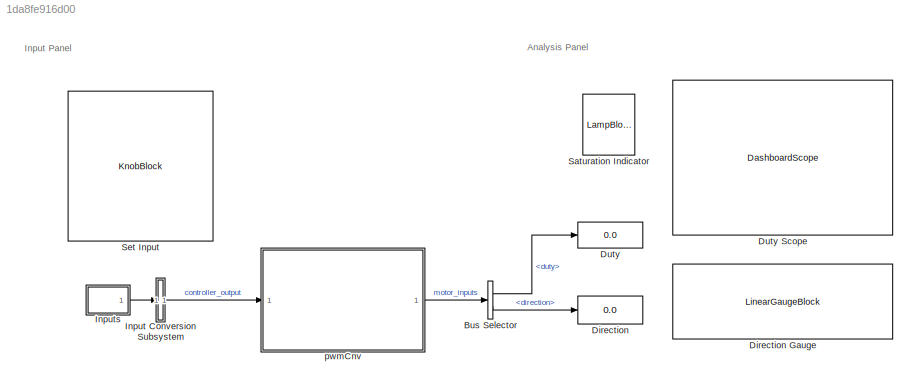
MODEL slx_1da8fe916d00
KIND model
CONFIG AbsTol = auto
CONFIG EnableMultiTasking = on
CONFIG FixedStep = Ts
CONFIG MaxStep = Ts
CONFIG MinStep = auto
CONFIG RelTol = 1e-3
CONFIG SampleTimeConstraint = Unconstrained
CONFIG SolverName = FixedStepDiscrete
CONFIG StartTime = 0.0
CONFIG StopTime = inf
BLOCK [BusSelector] Bus Selector
  OutputSignals = duty,direction
  Ports = [1, 2]
BLOCK [Display] Direction
  Decimation = 1
  Ports = [1]
BLOCK [LinearGaugeBlock] Direction Gauge
  ScaleMax = 2
  ScaleMin = -2
  TickInterval = 1
BLOCK [Display] Duty
  Decimation = 1
  Ports = [1]
BLOCK [DashboardScope] Duty Scope
  ScaleAtStop = off
  TimeSpan = 6000
  Ymax = 1.1000000000000001
  Ymin = -1.1000000000000001
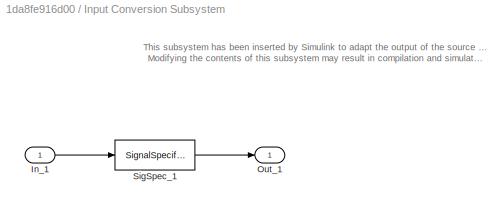
BLOCK [SubSystem] Input Conversion Subsystem
  Permissions = ReadOnly
  PermitHierarchicalResolution = ExplicitOnly
  Ports = [1, 1]
  RequestExecContextInheritance = off
  Tag = _input_conv_ss_
  UserDataPersistent = on
BLOCK [Inport] Input Conversion Subsystem/In_1
BLOCK [Outport] Input Conversion Subsystem/Out_1
  VectorParamsAs1DForOutWhenUnconnected = off
BLOCK [SignalSpecification] Input Conversion Subsystem/SigSpec_1
  Dimensions = [1]
  OutDataTypeStr = double
  SampleTime = 0.01
  SignalType = real
  VarSizeSig = No
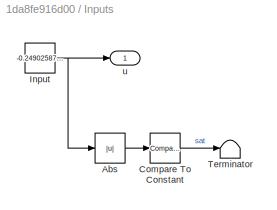
BLOCK [SubSystem] Inputs
  Ports = [0, 1]
  RequestExecContextInheritance = off
BLOCK [Abs] Inputs/Abs
  SaturateOnIntegerOverflow = off
BLOCK [Reference] Inputs/Compare To Constant  REF=simulink/Logic and Bit
Operations/Compare
To Constant
  Ports = [1, 1]
  SourceBlock = simulink/Logic and Bit\nOperations/Compare\nTo Constant
  SourceProductBaseCode = SL
  SourceType = Compare To Constant
BLOCK [Constant] Inputs/Input
  Value = -0.249025878906
BLOCK [Terminator] Inputs/Terminator
BLOCK [Outport] Inputs/u
  VectorParamsAs1DForOutWhenUnconnected = off
BLOCK [LampBlock] Saturation Indicator
  LabelPosition = Hide
BLOCK [KnobBlock] Set Input
  ScaleMax = 2
  ScaleMin = -2
  TickInterval = 0.5
BLOCK [ModelReference] pwmCnv
  ModelNameDialog = pwmCnv
  ModelReferenceVersion = 1.185
  Ports = [1, 1]
ANNOTATION (root): Analysis Panel
ANNOTATION (root): Input Panel
ANNOTATION Input Conversion Subsystem: This subsystem has been inserted by Simulink to adapt the output of the source blocks to the interface required by the harnessed component. Modifying the contents of this subsystem may result in compilation and simulation failure.
LINE Bus Selector:1 -> Duty:1
LINE Bus Selector:2 -> Direction:1
LINE Input Conversion Subsystem/In_1:1 -> Input Conversion Subsystem/SigSpec_1:1
LINE Input Conversion Subsystem/SigSpec_1:1 -> Input Conversion Subsystem/Out_1:1
LINE Input Conversion Subsystem:1 -> pwmCnv:1
LINE Inputs/Abs:1 -> Inputs/Compare To Constant:1
LINE Inputs/Compare To Constant:1 -> Inputs/Terminator:1
NET Inputs/Input:1 -> Inputs/Abs:1, Inputs/u:1
LINE Inputs:1 -> Input Conversion Subsystem:1
LINE pwmCnv:1 -> Bus Selector:1
note: NET lines group one-source signal fan-out (src -> all destinations, sorted); 1:1 wires keep LINE
